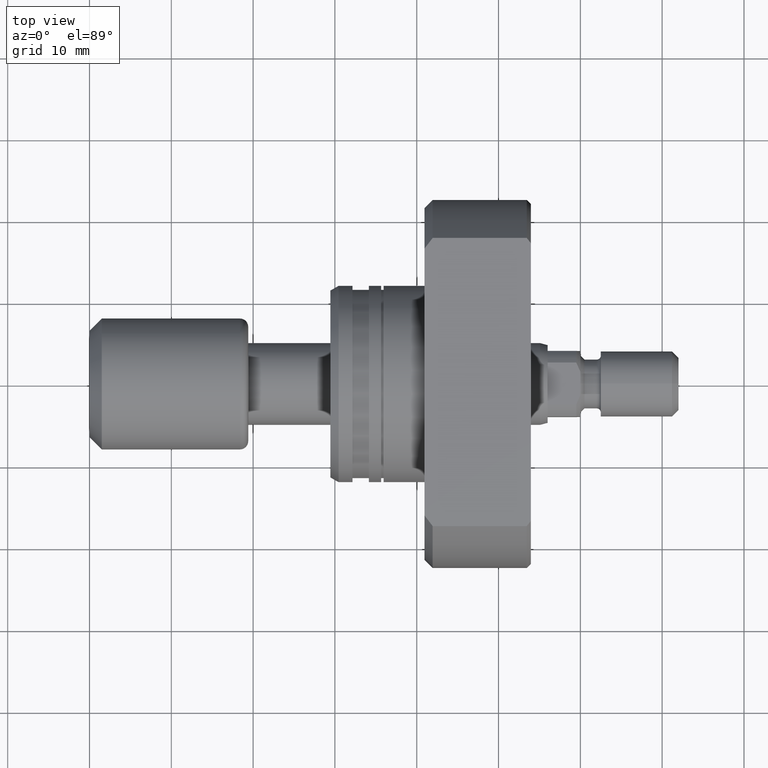
[diagram: clean part render]
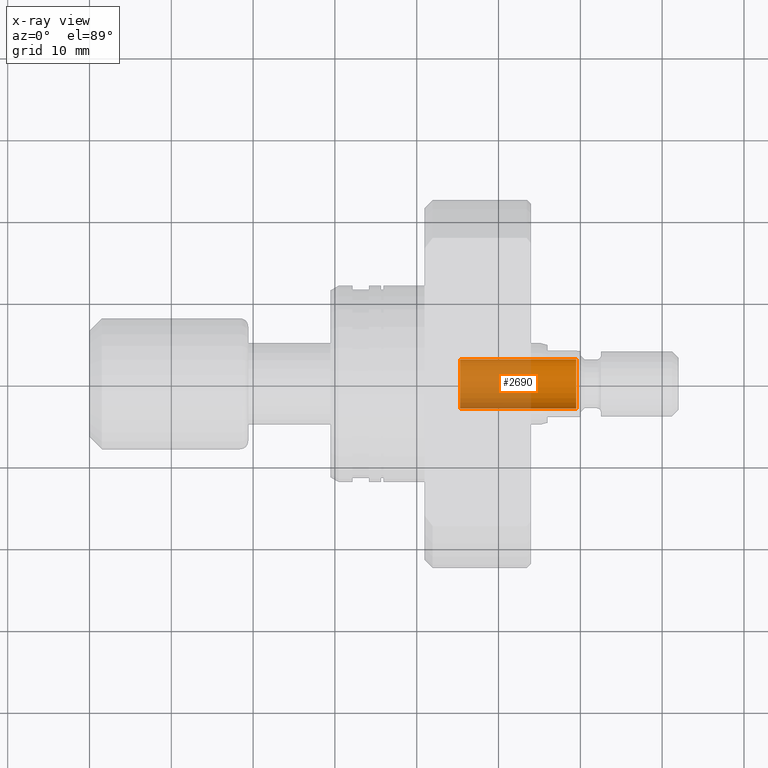
[diagram: x-ray — body ghosted, one internal face saturated and labeled with its STEP entity id]
A machine part, top view, then the same camera in x-ray: the body is ghosted and one INTERNAL B-rep face — a face not visible from any outside direction — is saturated and labeled: STEP entity #2690.
In plain terms, the highlighted cylindrical surface (edge-blend (fillet) strip) has radius 3 mm, axis along (1, -0, 0).
Its self-contained STEP definition (entity closure, byte-faithful):
#119 = DIRECTION ( 'NONE',  ( 1.000000000000000000, -1.657264799492230625E-14, -0.000000000000000000 ) ) ;
#166 = VERTEX_POINT ( 'NONE', #894 ) ;
#472 = CARTESIAN_POINT ( 'NONE',  ( 59.50000000000001421, -3.000000000001276756, 3.673940397442559316E-16 ) ) ;
#657 = CARTESIAN_POINT ( 'NONE',  ( 45.30000000000003268, 2.999999999999540368, 0.000000000000000000 ) ) ;
#754 = ORIENTED_EDGE ( 'NONE', *, *, #1268, .F. ) ;
#798 = CARTESIAN_POINT ( 'NONE',  ( 59.50000000000010658, 2.999999999999305000, 0.000000000000000000 ) ) ;
#850 = DIRECTION ( 'NONE',  ( 1.619075244244862919E-14, 1.000000000000000000, 0.000000000000000000 ) ) ;
#894 = CARTESIAN_POINT ( 'NONE',  ( 45.29999999999994031, -3.000000000001041833, 3.673940397442415842E-16 ) ) ;
#982 = CARTESIAN_POINT ( 'NONE',  ( 45.29999999999994031, -3.000000000001041833, 3.673940397442415842E-16 ) ) ;
#1165 = VECTOR ( 'NONE', #119, 1000.000000000000000 ) ;
#1185 = DIRECTION ( 'NONE',  ( 1.000000000000000000, -1.657264799492212008E-14, 0.000000000000000000 ) ) ;
#1195 = EDGE_LOOP ( 'NONE', ( #754, #3310, #2928, #2851 ) ) ;
#1242 = LINE ( 'NONE', #982, #1165 ) ;
#1244 = EDGE_CURVE ( 'NONE', #2912, #2686, #1685, .T. ) ;
#1268 = EDGE_CURVE ( 'NONE', #166, #2409, #1930, .T. ) ;
#1381 = FACE_OUTER_BOUND ( 'NONE', #1195, .T. ) ;
#1417 = DIRECTION ( 'NONE',  ( 1.619075244244862919E-14, 1.000000000000000000, 0.000000000000000000 ) ) ;
#1463 = VECTOR ( 'NONE', #1683, 1000.000000000000000 ) ;
#1513 = EDGE_CURVE ( 'NONE', #166, #2912, #1242, .T. ) ;
#1636 = CYLINDRICAL_SURFACE ( 'NONE', #2518, 3.000000000000290878 ) ;
#1683 = DIRECTION ( 'NONE',  ( 1.000000000000000000, -1.657264799492230625E-14, -0.000000000000000000 ) ) ;
#1685 = CIRCLE ( 'NONE', #2048, 3.000000000000290878 ) ;
#1930 = CIRCLE ( 'NONE', #2818, 3.000000000000290878 ) ;
#2048 = AXIS2_PLACEMENT_3D ( 'NONE', #3439, #1185, #2607 ) ;
#2103 = CARTESIAN_POINT ( 'NONE',  ( 45.30000000000003268, 2.999999999999540368, 0.000000000000000000 ) ) ;
#2409 = VERTEX_POINT ( 'NONE', #2103 ) ;
#2503 = DIRECTION ( 'NONE',  ( 1.000000000000000000, -1.657264799492230625E-14, -0.000000000000000000 ) ) ;
#2518 = AXIS2_PLACEMENT_3D ( 'NONE', #2781, #2503, #850 ) ;
#2556 = LINE ( 'NONE', #657, #1463 ) ;
#2607 = DIRECTION ( 'NONE',  ( -1.619075244244862919E-14, -1.000000000000000000, 0.000000000000000000 ) ) ;
#2686 = VERTEX_POINT ( 'NONE', #798 ) ;
#2690 = ADVANCED_FACE ( 'NONE', ( #1381 ), #1636, .F. ) ;
#2781 = CARTESIAN_POINT ( 'NONE',  ( 45.29999999999998295, -7.507409541699801707E-13, 0.000000000000000000 ) ) ;
#2818 = AXIS2_PLACEMENT_3D ( 'NONE', #2827, #3397, #1417 ) ;
#2827 = CARTESIAN_POINT ( 'NONE',  ( 45.29999999999998295, -7.507409541699801707E-13, 0.000000000000000000 ) ) ;
#2851 = ORIENTED_EDGE ( 'NONE', *, *, #3625, .F. ) ;
#2912 = VERTEX_POINT ( 'NONE', #472 ) ;
#2928 = ORIENTED_EDGE ( 'NONE', *, *, #1244, .T. ) ;
#3310 = ORIENTED_EDGE ( 'NONE', *, *, #1513, .T. ) ;
#3397 = DIRECTION ( 'NONE',  ( 1.000000000000000000, -1.657264799492230625E-14, 0.000000000000000000 ) ) ;
#3439 = CARTESIAN_POINT ( 'NONE',  ( 59.50000000000005684, -9.860725556978780642E-13, 0.000000000000000000 ) ) ;
#3625 = EDGE_CURVE ( 'NONE', #2409, #2686, #2556, .T. ) ;